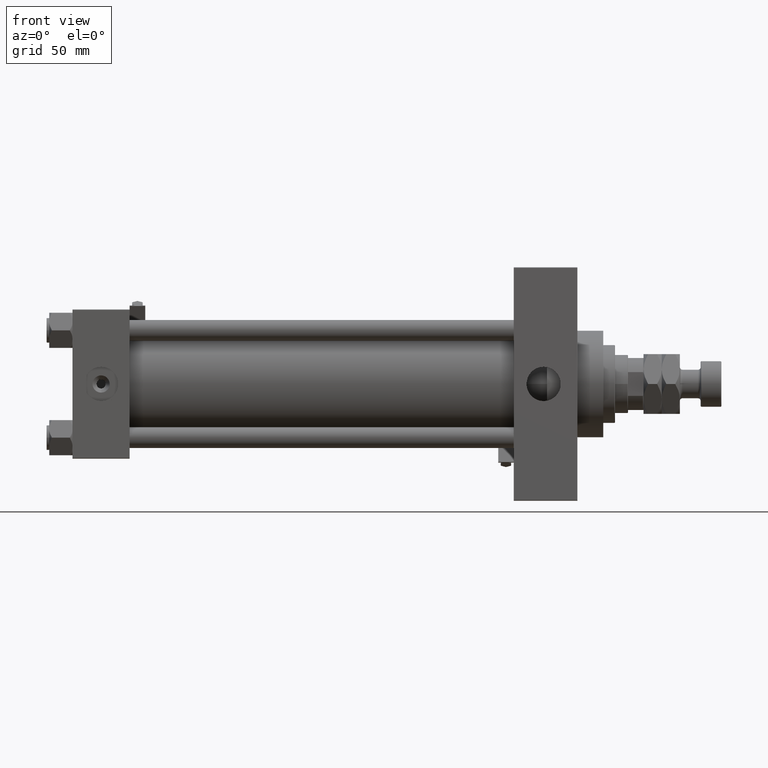
[diagram: clean part render]
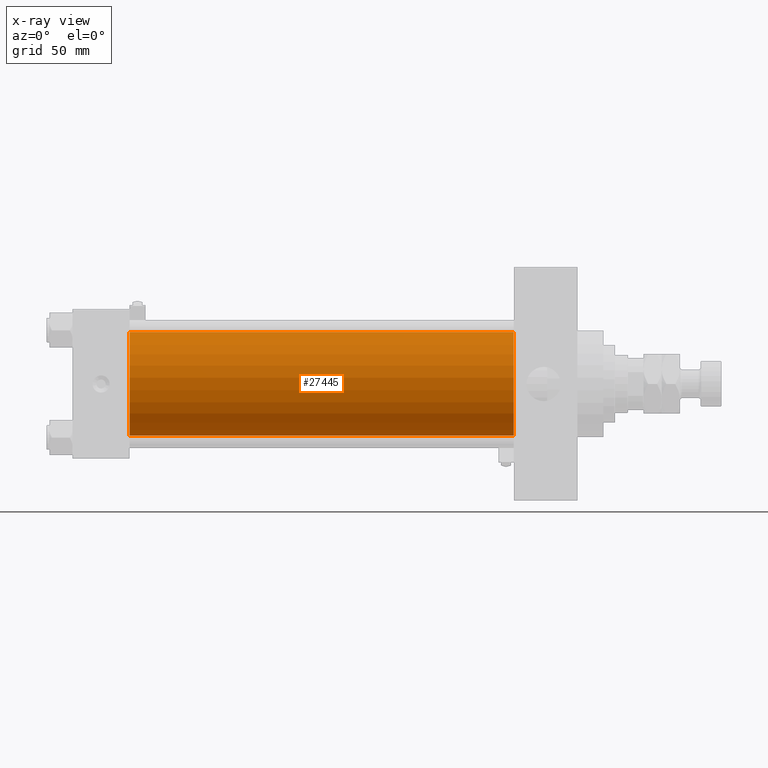
[diagram: x-ray — body ghosted, one internal face saturated and labeled with its STEP entity id]
A machine part, front view, then the same camera in x-ray: the body is ghosted and one INTERNAL B-rep face — a face not visible from any outside direction — is saturated and labeled: STEP entity #27445.
In plain terms, the highlighted cylindrical surface (partial cylindrical patch) has radius 40 mm, axis along (-1, -0, -0).
Its self-contained STEP definition (entity closure, byte-faithful):
#112 = LINE ( 'NONE', #23546, #49163 ) ;
#1029 = DIRECTION ( 'NONE',  ( 1.000000000000000000, 0.000000000000000000, 0.000000000000000000 ) ) ;
#1545 = FACE_OUTER_BOUND ( 'NONE', #15557, .T. ) ;
#3331 = AXIS2_PLACEMENT_3D ( 'NONE', #33253, #29019, #8257 ) ;
#4764 = EDGE_CURVE ( 'NONE', #22833, #48696, #8922, .T. ) ;
#5539 = CARTESIAN_POINT ( 'NONE',  ( 339.9999999999999432, -2.602085213965210642E-15, 0.000000000000000000 ) ) ;
#5799 = DIRECTION ( 'NONE',  ( 0.000000000000000000, 0.000000000000000000, 1.000000000000000000 ) ) ;
#8257 = DIRECTION ( 'NONE',  ( 0.000000000000000000, 0.000000000000000000, -1.000000000000000000 ) ) ;
#8667 = VERTEX_POINT ( 'NONE', #19379 ) ;
#8922 = CIRCLE ( 'NONE', #33570, 40.00000000000000000 ) ;
#9119 = CARTESIAN_POINT ( 'NONE',  ( 44.00000000000000000, 2.296501982624201990E-15, -40.00000000000000000 ) ) ;
#12771 = DIRECTION ( 'NONE',  ( 0.000000000000000000, 0.000000000000000000, -1.000000000000000000 ) ) ;
#12856 = AXIS2_PLACEMENT_3D ( 'NONE', #5539, #22827, #5799 ) ;
#15098 = EDGE_CURVE ( 'NONE', #8667, #48696, #47204, .T. ) ;
#15557 = EDGE_LOOP ( 'NONE', ( #51015, #23346, #46936, #41677 ) ) ;
#15933 = EDGE_CURVE ( 'NONE', #25813, #22833, #112, .T. ) ;
#19379 = CARTESIAN_POINT ( 'NONE',  ( 339.9999999999999432, 2.296501982624201990E-15, -40.00000000000000000 ) ) ;
#21025 = CARTESIAN_POINT ( 'NONE',  ( 44.00000000000000000, -2.602085213965210642E-15, 0.000000000000000000 ) ) ;
#22827 = DIRECTION ( 'NONE',  ( -1.000000000000000000, -0.000000000000000000, -0.000000000000000000 ) ) ;
#22833 = VERTEX_POINT ( 'NONE', #51855 ) ;
#23346 = ORIENTED_EDGE ( 'NONE', *, *, #15098, .T. ) ;
#23546 = CARTESIAN_POINT ( 'NONE',  ( 339.9999999999999432, -2.602085213965210642E-15, 40.00000000000000000 ) ) ;
#25813 = VERTEX_POINT ( 'NONE', #33605 ) ;
#26286 = CIRCLE ( 'NONE', #3331, 40.00000000000000000 ) ;
#27445 = ADVANCED_FACE ( 'NONE', ( #1545 ), #34783, .F. ) ;
#29019 = DIRECTION ( 'NONE',  ( 1.000000000000000000, 0.000000000000000000, 0.000000000000000000 ) ) ;
#33253 = CARTESIAN_POINT ( 'NONE',  ( 339.9999999999999432, -2.602085213965210642E-15, 0.000000000000000000 ) ) ;
#33570 = AXIS2_PLACEMENT_3D ( 'NONE', #21025, #1029, #12771 ) ;
#33605 = CARTESIAN_POINT ( 'NONE',  ( 339.9999999999999432, -2.602085213965210642E-15, 40.00000000000000000 ) ) ;
#34783 = CYLINDRICAL_SURFACE ( 'NONE', #12856, 40.00000000000000000 ) ;
#35226 = CARTESIAN_POINT ( 'NONE',  ( 339.9999999999999432, 2.296501982624201990E-15, -40.00000000000000000 ) ) ;
#39763 = DIRECTION ( 'NONE',  ( -1.000000000000000000, -0.000000000000000000, -0.000000000000000000 ) ) ;
#41677 = ORIENTED_EDGE ( 'NONE', *, *, #15933, .F. ) ;
#43466 = EDGE_CURVE ( 'NONE', #25813, #8667, #26286, .T. ) ;
#44875 = VECTOR ( 'NONE', #51445, 1000.000000000000000 ) ;
#46936 = ORIENTED_EDGE ( 'NONE', *, *, #4764, .F. ) ;
#47204 = LINE ( 'NONE', #35226, #44875 ) ;
#48696 = VERTEX_POINT ( 'NONE', #9119 ) ;
#49163 = VECTOR ( 'NONE', #39763, 1000.000000000000000 ) ;
#51015 = ORIENTED_EDGE ( 'NONE', *, *, #43466, .T. ) ;
#51445 = DIRECTION ( 'NONE',  ( -1.000000000000000000, -0.000000000000000000, -0.000000000000000000 ) ) ;
#51855 = CARTESIAN_POINT ( 'NONE',  ( 44.00000000000000000, -2.602085213965210642E-15, 40.00000000000000000 ) ) ;